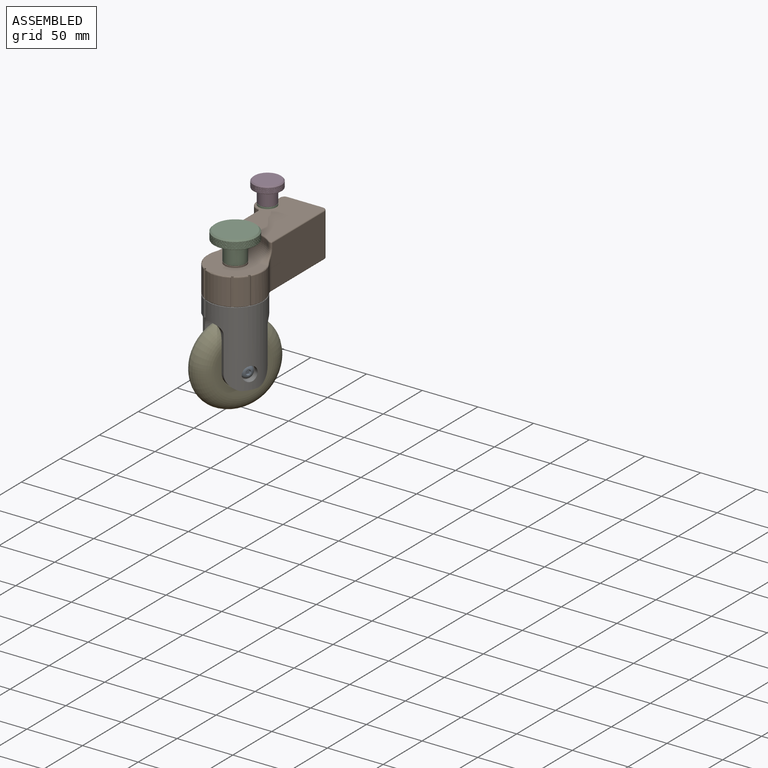
[diagram: assembled view]
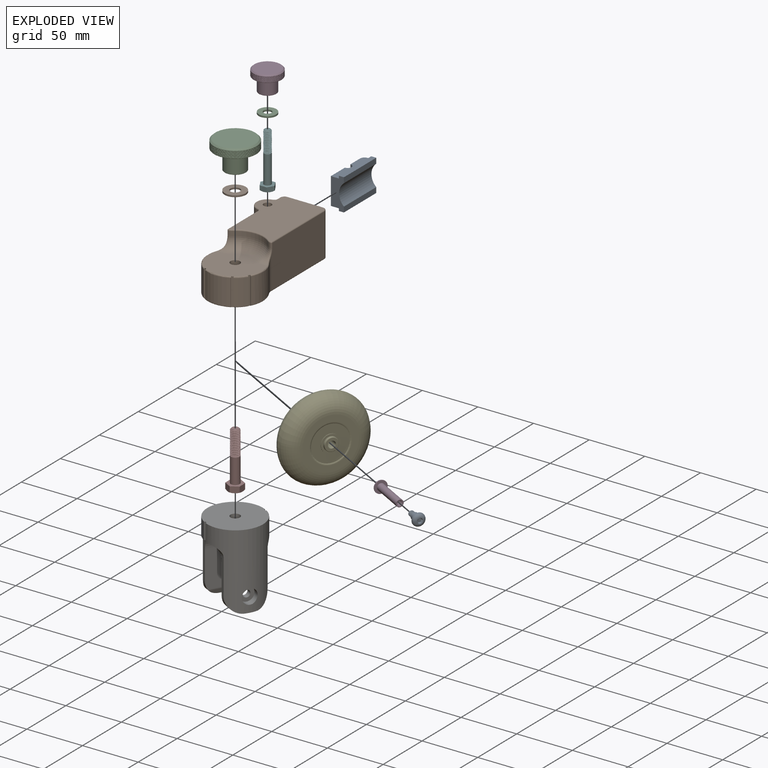
[diagram: exploded view]
GUIDED TOUR — MATED ASSEMBLY (Onshape document 4ea340098eec09b03dd53db8, AutoMate assembly 4ea340098eec09b03dd53db8_989ae54d2c0a97f3ca65fc75_ad3294c9f3adab00267634f9_default)

This assembly has 12 components, labeled P0..P11 below (a component is one placed occurrence of a part; the same part can appear more than once), held together by 11 mates. A mate is a constraint between two components; its type names the relative motion it leaves free:
  FASTENED — locks the two components together rigidly (no relative motion),
  REVOLUTE — leaves rotation about the listed axis free (a hinge),
  SLIDER — leaves translation along the listed axis free.
Axis/direction vectors are unit vectors and 'through' points are millimeter coordinates, both in the assembly's world frame.

MATES
  1. REVOLUTE "Revolute 1": P6 <-> P1, axis (0.000, 0.000, 1.000) through (0.29, -33.04, 0.00) mm
  2. FASTENED "Fastened 7": P2 <-> P9, direction (0.000, 0.000, -1.000) through (0.29, -33.04, 26.45) mm
  3. FASTENED "Fastened 5": P9 <-> P1, direction (0.000, 0.000, -1.000) through (0.29, -33.04, 25.00) mm
  4. FASTENED "Fastened 6": P10 <-> P1, direction (0.000, 0.000, -1.000) through (-19.71, 36.96, 40.00) mm
  5. REVOLUTE "Revolute 2": P4 <-> P6, axis (-0.875, 0.484, 0.000) through (-11.96, -26.26, -55.00) mm
  6. SLIDER "Slider 1": P0 <-> P1, axis (0.000, 1.000, 0.000) through (0.29, 56.96, 20.00) mm
  7. FASTENED "Fastened 2": P8 <-> P6, direction (-0.875, 0.484, 0.000) through (16.92, -42.23, -55.00) mm
  8. FASTENED "Fastened 3": P7 <-> P6, direction (0.000, 0.000, 1.000) through (0.29, -33.04, -10.00) mm
  9. FASTENED "Fastened 1": P3 <-> P6, direction (0.875, -0.484, 0.000) through (-16.34, -23.84, -55.00) mm
  10. FASTENED "Fastened 4": P5 <-> P1, direction (0.000, 0.000, 1.000) through (-19.71, 36.96, 3.50) mm
  11. FASTENED "Fastened 8": P11 <-> P10, direction (0.000, 0.000, -1.000) through (-19.71, 36.96, 41.45) mm

ASSEMBLY ORDER
  1. P1 — the base component [order heuristic]
  2. P5 — core [order heuristic]
  3. P6 — core [order heuristic]
  4. P7 — core [order heuristic]
  5. P10 — core [order heuristic]
  6. P9 — core [order heuristic]
  7. P3 — core [order heuristic]
  8. P4 — core [order heuristic]
  9. P2 — core [order heuristic]
  10. P8 — core [order heuristic]
  11. P11 — core [order heuristic]
  12. P0 [order verified]
Order-tag legend:
  [order verified] — this step's position reverses a verified removal order: the component was checked to insert without passing through the ones already placed.
  [order heuristic] — the first 11 components form the assembly's core: parts whose collision-free extraction could not be verified, listed in mate-graph order.

Of the 12 components, 2 carry the full construction recipe — the FeatureScript program that regenerates the part's solid from scratch; the rest are supplied as boundary geometry only.
Each toured component is shown spotlighted twice — in the assembled view, then in the exploded view, where a leader line traces a displaced component back to its assembled socket (saturated green if recipe-attached, orange if geometry-only; every other component desaturated gray) — followed by its recipe or geometry summary and the mates that hold it.
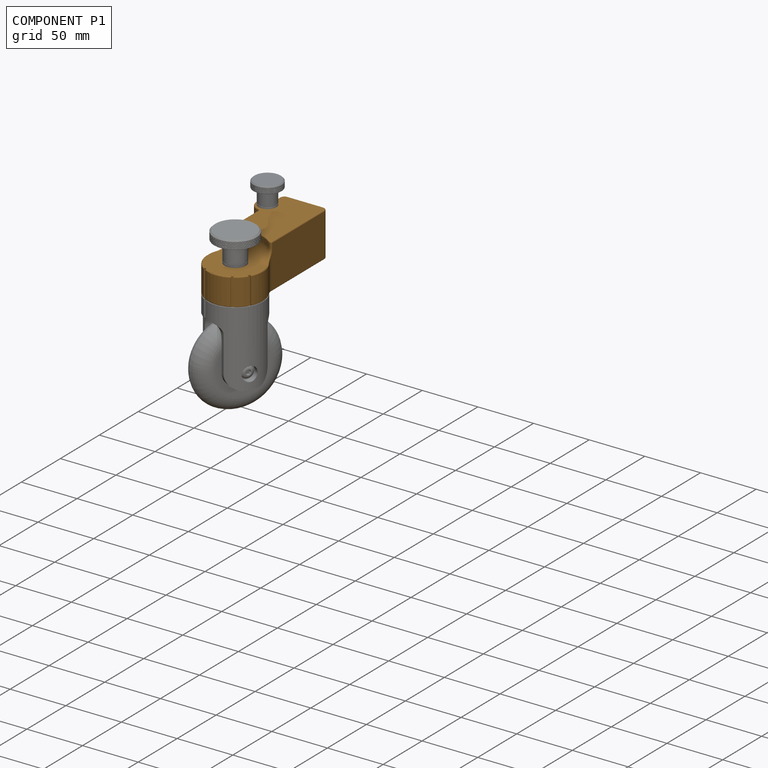
[diagram: component P1 — assembled]
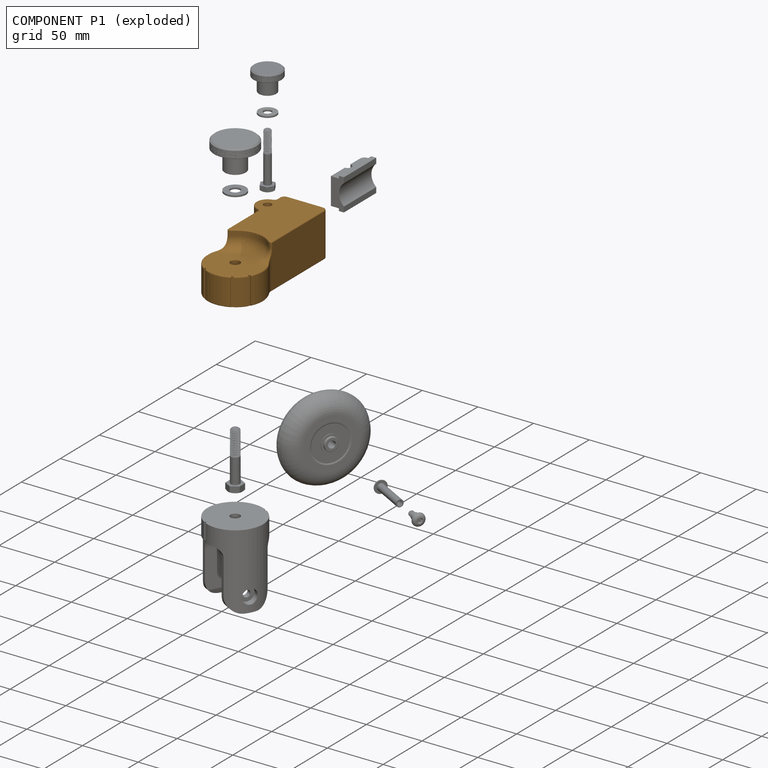
[diagram: component P1 — exploded]
COMPONENT P1 — geometry summary (no construction recipe available for this part):
  bounding box: 117.4 x 57.9 x 42.1 mm
  B-rep topology: 1 solid, 129 faces, 658 edges
  volume: 106815 mm^3 (37% of its bounding box)
Held by: REVOLUTE mate "Revolute 1" to P6; FASTENED mate "Fastened 5" to P9; FASTENED mate "Fastened 6" to P10; SLIDER mate "Slider 1" to P0; FASTENED mate "Fastened 4" to P5.
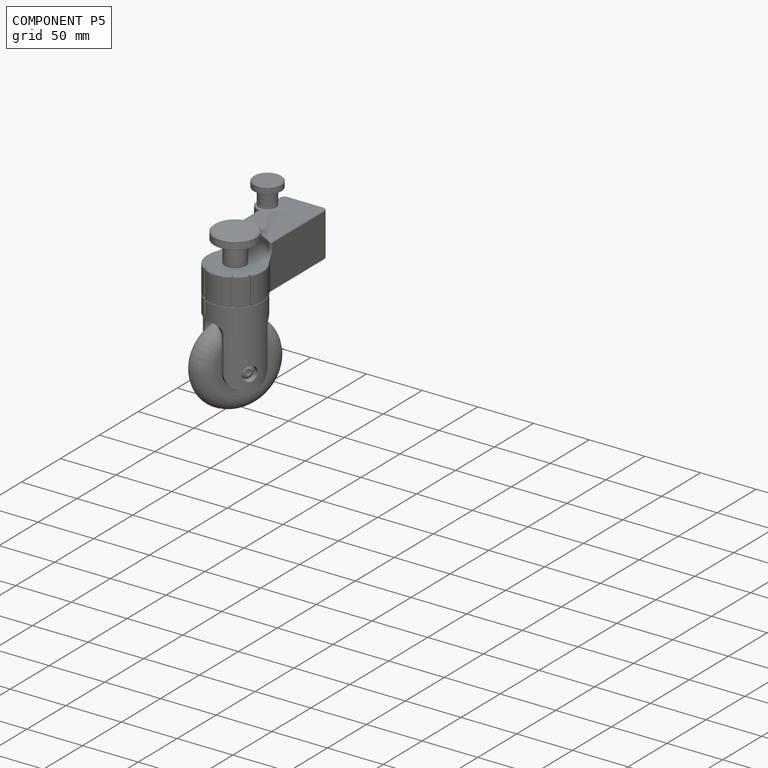
[diagram: component P5 — assembled]
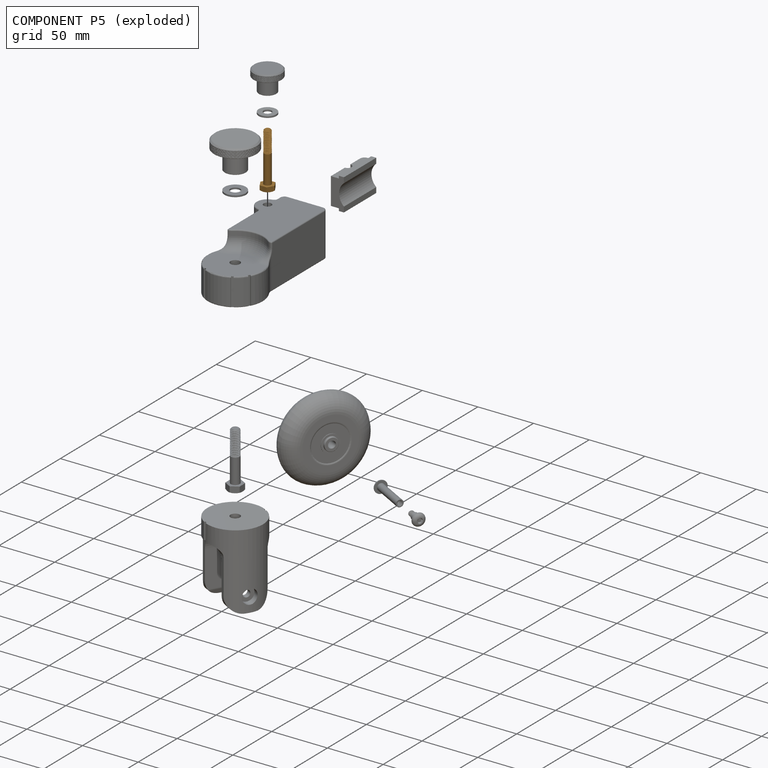
[diagram: component P5 — exploded]
COMPONENT P5 — geometry summary (no construction recipe available for this part):
  bounding box: 49.3 x 12.8 x 12.8 mm
  B-rep topology: 1 solid, 51 faces, 258 edges
  volume: 1731 mm^3 (21% of its bounding box)
  symmetry: 6-fold rotationally symmetric about the x axis
Held by: FASTENED mate "Fastened 4" to P1.
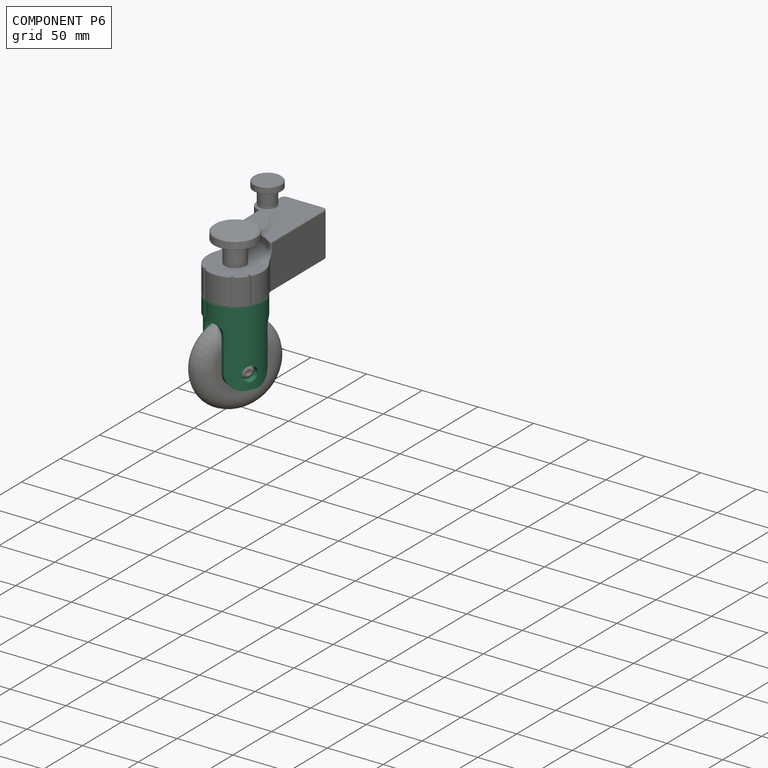
[diagram: component P6 — assembled]
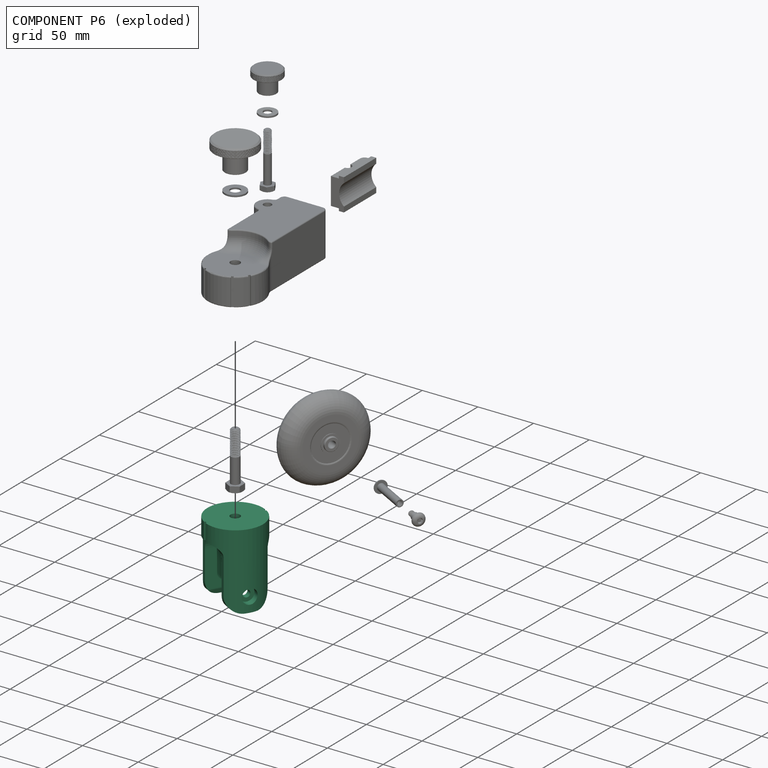
[diagram: component P6 — exploded]
COMPONENT P6 — recipe-attached (CADFS 00204495, mesh-verified: the recipe's output STEP matches this component's geometry to below the mesh-comparison resolution (tessellation chordal tolerance ~0.147 mm)).
Held by: REVOLUTE mate "Revolute 1" to P1; REVOLUTE mate "Revolute 2" to P4; FASTENED mate "Fastened 2" to P8; FASTENED mate "Fastened 3" to P7; FASTENED mate "Fastened 1" to P3.
Construction recipe (FeatureScript — the CAD program that rebuilds this solid; sketch coordinates are in the units given by the * unit suffixes, e.g. mm):

FeatureScript 1511;
import(path : "onshape/std/geometry.fs", version : "1511.0");
import(path : "onshape/std/common.fs", version : "1511.0");
const mm = millimeter;
const VERTEX = EntityType.VERTEX;
const EDGE = EntityType.EDGE;
const FACE = EntityType.FACE;
const BODY = EntityType.BODY;
function v(x, y){return vector(x, y);}
function OD(order){return orderDisambiguation(order);}
function OSD(set){return originalSetDisambiguation(set);}
function TD(topology){return topologyDisambiguation(topology);}
function TDD(query){return trueDependencyDisambiguation(query);}
function sQuery(a, b, c) {return sketchEntityQuery(a, b, c);}

annotation { "Feature Type Name" : "Feature", "Feature Type Description" : "" }
export const myFeature = defineFeature(function(context is Context, id is Id, definition is map)
    precondition{}
    {
        {
            var Q0;
            Q0=qCreatedBy(makeId("Top.planeOp"),FACE);
            var sketch = newSketch(context, id + "F0", { "sketchPlane" : qUnion([Q0])});
            skCircle(sketch, "E0", {"center": v(0, 0) * mm, "radius": 25 * mm});
            skSolve(sketch);
        }
        {
            var Q0;
            Q0 = qSketchRegion(id + "F0", true);
            extrude(context, id + "F1", {"entities" : qUnion([Q0]), "oppositeDirection" : true, "depth" : 68 * mm});
        }
        {
            var Q0;
            Q0=qCreatedBy(makeId("Right.planeOp"),FACE);
            var sketch = newSketch(context, id + "F2", { "sketchPlane" : qUnion([Q0])});
            skCircle(sketch, "E1", {"center": v(0, -55) * mm, "radius": 40 * mm, "construction": true});
            skLineSegment(sketch, "E2", {"start": v(-28, -15) * mm, "end": v(-25, -15) * mm});
            skLineSegment(sketch, "E3", {"start": v(-18, -22.94) * mm, "end": v(-18, -55) * mm});
            skLineSegment(sketch, "E4", {"start": v(-28, -15) * mm, "end": v(-28, -73) * mm});
            skLineSegment(sketch, "E5", {"start": v(-28, -73) * mm, "end": v(0, -73) * mm});
            skLineSegment(sketch, "E6", {"start": v(0, -68) * mm, "end": v(-5, -68) * mm});
            skArc(sketch, "E7", {"start": v(-18, -55) * mm, "mid": v(-14.2, -64.2) * mm, "end": v(-5, -68) * mm});
            skLineSegment(sketch, "E8", {"start": v(0, 0) * mm, "end": v(0, -95) * mm, "construction": true});
            skArc(sketch, "E9", {"start": v(-18, -22.94) * mm, "mid": v(-20, -17.65) * mm, "end": v(-25, -15) * mm});
            skLineSegment(sketch, "E10.MirrorCS", {"start": v(28, -15) * mm, "end": v(25, -15) * mm});
            skArc(sketch, "E11.MirrorCS", {"start": v(18, -22.94) * mm, "mid": v(20, -17.65) * mm, "end": v(25, -15) * mm});
            skArc(sketch, "E12.MirrorCS", {"start": v(18, -55) * mm, "mid": v(14.2, -64.2) * mm, "end": v(5, -68) * mm});
            skLineSegment(sketch, "E13.MirrorCS", {"start": v(0, -68) * mm, "end": v(5, -68) * mm});
            skLineSegment(sketch, "E14.MirrorCS", {"start": v(18, -22.94) * mm, "end": v(18, -55) * mm});
            skLineSegment(sketch, "E15.MirrorCS", {"start": v(28, -73) * mm, "end": v(0, -73) * mm});
            skLineSegment(sketch, "E16.MirrorCS", {"start": v(28, -15) * mm, "end": v(28, -73) * mm});
            skSolve(sketch);
        }
        {
            var Q0;
            Q0 = qSketchRegion(id + "F2", true);
            extrude(context, id + "F3", {"entities" : qUnion([Q0]), "operationType" : NewBodyOperationType.REMOVE, "endBound" : BoundingType.THROUGH_ALL, "oppositeDirection" : true, "depth" : 25 * mm, "hasSecondDirection" : true, "secondDirectionBound" : SecondDirectionBoundingType.THROUGH_ALL, "secondDirectionOppositeDirection" : false, "secondDirectionDepth" : 25 * mm});
        }
        {
            var Q0;
            Q0=qCreatedBy(makeId("Front.planeOp"),FACE);
            var sketch = newSketch(context, id + "F4", { "sketchPlane" : qUnion([Q0])});
            skArc(sketch, "E17", {"start": v(14, -29) * mm, "mid": v(0, -15) * mm, "end": v(-14, -29) * mm});
            skLineSegment(sketch, "E18", {"start": v(-14, -29) * mm, "end": v(-14, -62.33) * mm});
            skLineSegment(sketch, "E19", {"start": v(14, -29) * mm, "end": v(14, -62.33) * mm});
            skLineSegment(sketch, "E20", {"start": v(16.33, -68) * mm, "end": v(-16.33, -68) * mm});
            skLineSegment(sketch, "E21", {"start": v(-14.28, -63.6) * mm, "end": v(-16.33, -68) * mm});
            skLineSegment(sketch, "E22", {"start": v(14.28, -63.6) * mm, "end": v(16.33, -68) * mm});
            skLineSegment(sketch, "E23", {"start": v(-14, -63) * mm, "end": v(14, -63) * mm, "construction": true});
            skPoint(sketch, "E24.visualSharp", {"position": v(-14, -63) * mm});
            skArc(sketch, "E24.filletArc", {"start": v(-14.28, -63.6) * mm, "mid": v(-14.07, -62.98) * mm, "end": v(-14, -62.33) * mm});
            skPoint(sketch, "E25.visualSharp", {"position": v(14, -63) * mm});
            skArc(sketch, "E25.filletArc", {"start": v(14, -62.33) * mm, "mid": v(14.07, -62.98) * mm, "end": v(14.28, -63.6) * mm});
            skSolve(sketch);
        }
        {
            var Q0;
            Q0 = qSketchRegion(id + "F4", true);
            extrude(context, id + "F5", {"entities" : qUnion([Q0]), "operationType" : NewBodyOperationType.REMOVE, "endBound" : BoundingType.THROUGH_ALL, "oppositeDirection" : true, "depth" : 25 * mm, "hasSecondDirection" : true, "secondDirectionBound" : SecondDirectionBoundingType.THROUGH_ALL, "secondDirectionOppositeDirection" : false, "secondDirectionDepth" : 25 * mm});
        }
        {
            var Q0;
            Q0=qCreatedBy(makeId("Front.planeOp"),FACE);
            var sketch = newSketch(context, id + "F6", { "sketchPlane" : qUnion([Q0])});
            skLineSegment(sketch, "E26", {"start": v(-30.91, -55) * mm, "end": v(31.05, -55) * mm, "construction": true});
            skLineSegment(sketch, "E27", {"start": v(-26, -48.5) * mm, "end": v(-19, -48.5) * mm});
            skLineSegment(sketch, "E28", {"start": v(-19, -48.5) * mm, "end": v(-19, -51.88) * mm});
            skLineSegment(sketch, "E29", {"start": v(-19, -51.88) * mm, "end": v(0, -51.88) * mm});
            skLineSegment(sketch, "E30", {"start": v(-26, -48.5) * mm, "end": v(-26, -55) * mm});
            skLineSegment(sketch, "E31", {"start": v(-26, -55) * mm, "end": v(0, -55) * mm});
            skLineSegment(sketch, "E32.MirrorCS", {"start": v(26, -48.5) * mm, "end": v(19, -48.5) * mm});
            skLineSegment(sketch, "E33.MirrorCS", {"start": v(19, -48.5) * mm, "end": v(19, -51.88) * mm});
            skLineSegment(sketch, "E34.MirrorCS", {"start": v(19, -51.88) * mm, "end": v(0, -51.88) * mm});
            skLineSegment(sketch, "E35.MirrorCS", {"start": v(26, -48.5) * mm, "end": v(26, -55) * mm});
            skLineSegment(sketch, "E36.MirrorCS", {"start": v(26, -55) * mm, "end": v(0, -55) * mm});
            skSolve(sketch);
        }
        {
            var Q0;
            Q0 = qSketchRegion(id + "F6", true);
            var Q1;
            Q1=sQuery(id+"F6.wireOp",EDGE,"E26");
            revolve(context, id + "F7", {"operationType" : NewBodyOperationType.REMOVE, "entities" : qUnion([Q0]), "axis" : qUnion([Q1]), "revolveType" : RevolveType.FULL, "oppositeDirection" : true});
        }
        {
            var Q0;
            Q0=makeQuery(id+"F1.opExtrude","CAP_FACE",FACE,{"disambiguationData":[OSD([sQuery(id+"F0.wireOp",EDGE,"E0")])],"isStart":true});
            var sketch = newSketch(context, id + "F8", { "sketchPlane" : qUnion([Q0])});
            skCircle(sketch, "E37", {"center": v(0, 0) * mm, "radius": 4.25 * mm});
            skSolve(sketch);
        }
        {
            var Q0;
            Q0 = qSketchRegion(id + "F8", true);
            extrude(context, id + "F9", {"entities" : qUnion([Q0]), "operationType" : NewBodyOperationType.REMOVE, "oppositeDirection" : true, "depth" : 25 * mm});
        }
        {
            var Q0;
            Q0=qCreatedBy(makeId("Top.planeOp"),FACE);
            cPlane(context, id + "F10", {"entities" : qUnion([Q0]), "cplaneType" : CPlaneType.OFFSET, "offset" : 10 * mm, "oppositeDirection" : true, "width" : 150 * mm, "height" : 150 * mm});
        }
        {
            var Q0;
            Q0=qCreatedBy(id+"F10.planeOp",FACE);
            var sketch = newSketch(context, id + "F11", { "sketchPlane" : qUnion([Q0])});
            skCircle(sketch, "E38.cCircle", {"center": v(0, 0) * mm, "radius": 6.3 * mm, "construction": true});
            skLineSegment(sketch, "E38.0", {"start": v(7.27, 0) * mm, "end": v(3.64, -6.3) * mm});
            skLineSegment(sketch, "E38.1", {"start": v(3.64, -6.3) * mm, "end": v(-3.64, -6.3) * mm});
            skLineSegment(sketch, "E38.2", {"start": v(-3.64, -6.3) * mm, "end": v(-7.27, 0) * mm});
            skLineSegment(sketch, "E38.3", {"start": v(-7.27, 0) * mm, "end": v(-3.64, 6.3) * mm});
            skLineSegment(sketch, "E38.4", {"start": v(-3.64, 6.3) * mm, "end": v(3.64, 6.3) * mm});
            skLineSegment(sketch, "E38.5", {"start": v(3.64, 6.3) * mm, "end": v(7.27, 0) * mm});
            skPoint(sketch, "E38.0.midPoint", {"position": v(5.46, -3.15) * mm});
            skSolve(sketch);
        }
        {
            var Q0;
            Q0 = qSketchRegion(id + "F11", true);
            extrude(context, id + "F12", {"entities" : qUnion([Q0]), "operationType" : NewBodyOperationType.REMOVE, "oppositeDirection" : true, "depth" : 10 * mm});
        }
        {
            var Q0;
            Q0=makeQuery(id+"F1.opExtrude","CAP_FACE",FACE,{"disambiguationData":[OSD([sQuery(id+"F0.wireOp",EDGE,"E0")])],"isStart":true});
            var sketch = newSketch(context, id + "F13", { "sketchPlane" : qUnion([Q0])});
            skLineSegment(sketch, "E39.bottom", {"start": v(-1, 24) * mm, "end": v(1, 24) * mm});
            skLineSegment(sketch, "E39.top", {"start": v(-1, 26) * mm, "end": v(1, 26) * mm});
            skLineSegment(sketch, "E39.left", {"start": v(-1, 24) * mm, "end": v(-1, 26) * mm});
            skLineSegment(sketch, "E39.right", {"start": v(1, 24) * mm, "end": v(1, 26) * mm});
            skLineSegment(sketch, "E40.bottom", {"start": v(-1, -26) * mm, "end": v(1, -26) * mm});
            skLineSegment(sketch, "E40.top", {"start": v(-1, -24) * mm, "end": v(1, -24) * mm});
            skLineSegment(sketch, "E40.left", {"start": v(-1, -26) * mm, "end": v(-1, -24) * mm});
            skLineSegment(sketch, "E40.right", {"start": v(1, -26) * mm, "end": v(1, -24) * mm});
            skLineSegment(sketch, "E41", {"start": v(0, 18.47) * mm, "end": v(0, -17.11) * mm, "construction": true});
            skPoint(sketch, "E42", {"position": v(0, 24) * mm});
            skPoint(sketch, "E43", {"position": v(0, -24) * mm});
            skSolve(sketch);
        }
        {
            var Q0;
            Q0 = qSketchRegion(id + "F13", true);
            extrude(context, id + "F14", {"entities" : qUnion([Q0]), "operationType" : NewBodyOperationType.REMOVE, "oppositeDirection" : true, "depth" : 25 * mm});
        }
    });
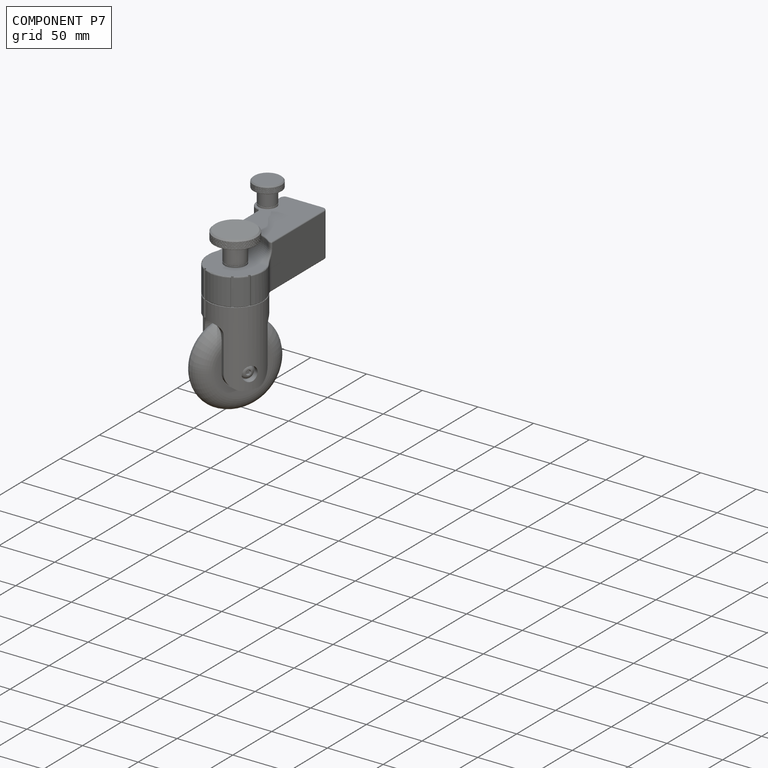
[diagram: component P7 — assembled]
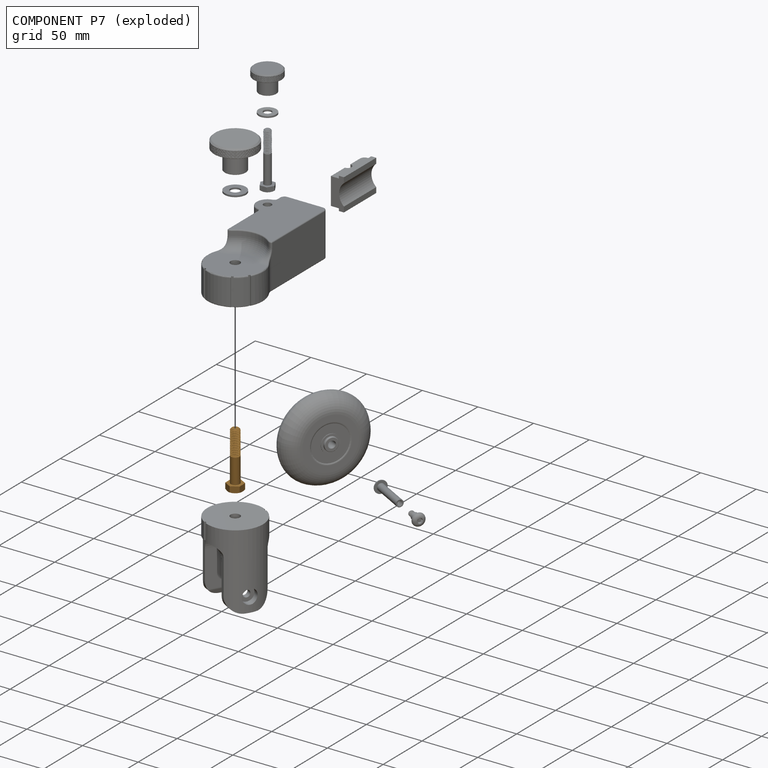
[diagram: component P7 — exploded]
COMPONENT P7 — geometry summary (no construction recipe available for this part):
  bounding box: 50.5 x 14.7 x 14.7 mm
  B-rep topology: 1 solid, 51 faces, 256 edges
  volume: 2731 mm^3 (25% of its bounding box)
  symmetry: 6-fold rotationally symmetric about the x axis
Held by: FASTENED mate "Fastened 3" to P6.
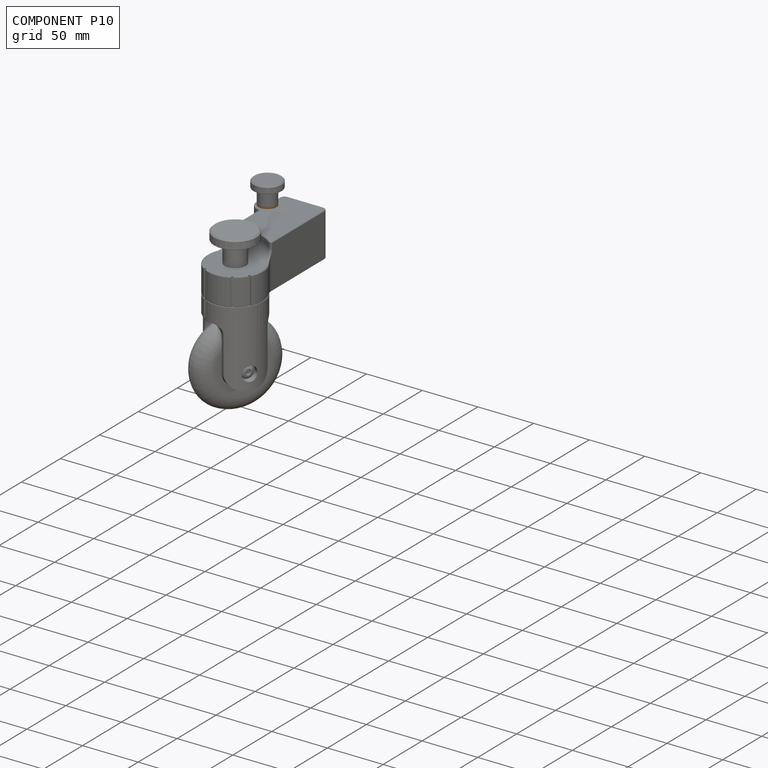
[diagram: component P10 — assembled]
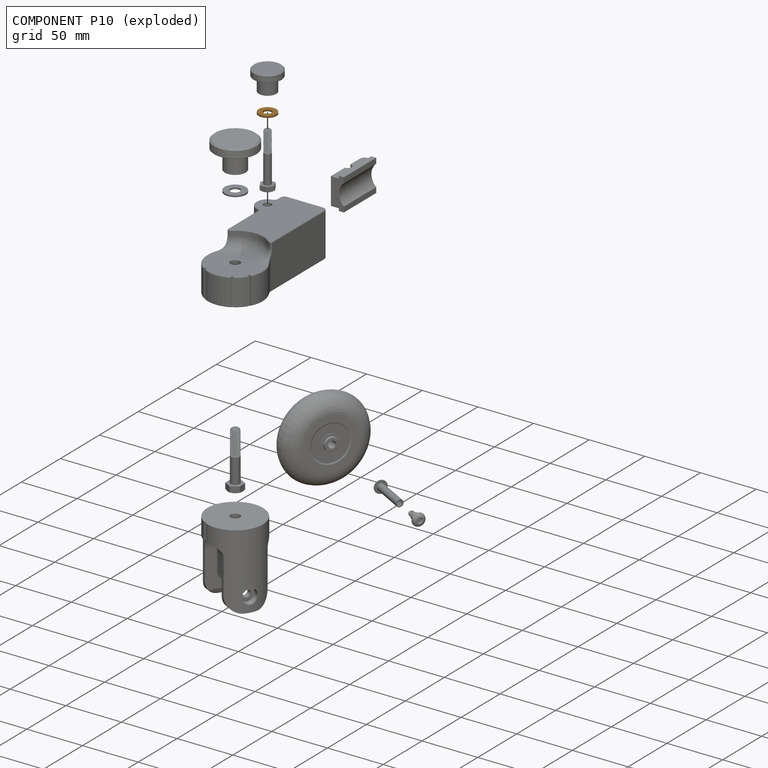
[diagram: component P10 — exploded]
COMPONENT P10 — geometry summary (no construction recipe available for this part):
  bounding box: 15.9 x 15.9 x 1.4 mm
  B-rep topology: 1 solid, 4 faces, 12 edges
  volume: 229 mm^3 (63% of its bounding box)
  symmetry: 2-fold rotationally symmetric about the x axis; revolution-symmetric about the y axis through its bounding-box center; 2-fold rotationally symmetric about the z axis; mirror-symmetric across its x mid-plane, y mid-plane, z mid-plane
Held by: FASTENED mate "Fastened 6" to P1; FASTENED mate "Fastened 8" to P11.
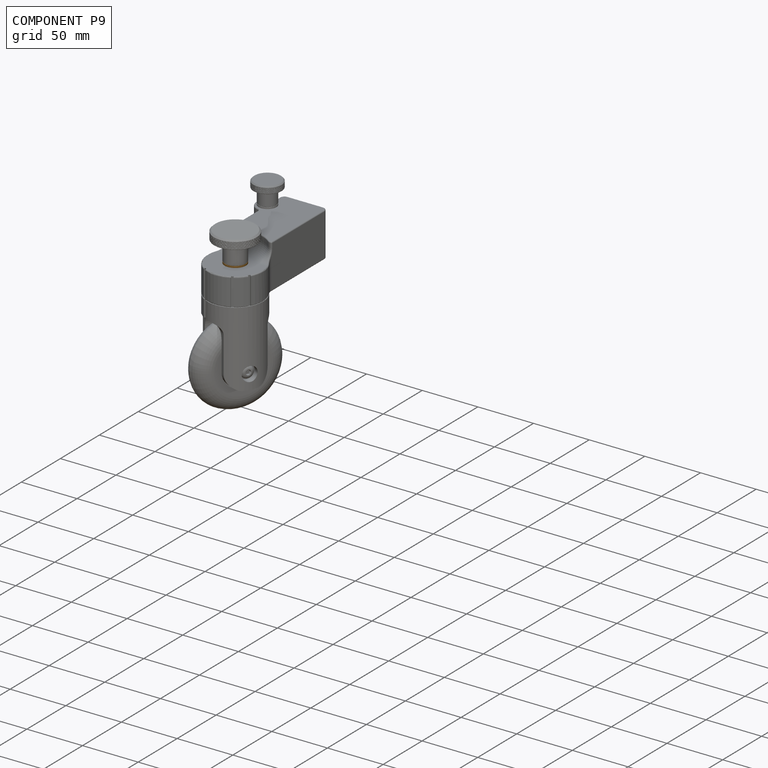
[diagram: component P9 — assembled]
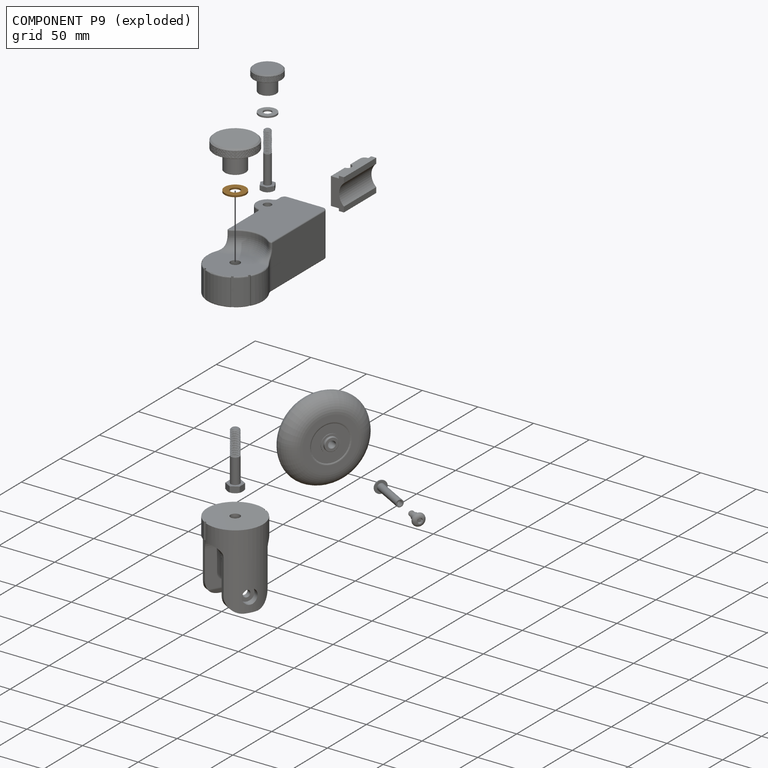
[diagram: component P9 — exploded]
COMPONENT P9 — geometry summary (no construction recipe available for this part):
  bounding box: 19.1 x 19.1 x 1.4 mm
  B-rep topology: 1 solid, 4 faces, 12 edges
  volume: 326 mm^3 (62% of its bounding box)
  symmetry: 2-fold rotationally symmetric about the x axis; revolution-symmetric about the y axis through its bounding-box center; 2-fold rotationally symmetric about the z axis; mirror-symmetric across its x mid-plane, y mid-plane, z mid-plane
Held by: FASTENED mate "Fastened 7" to P2; FASTENED mate "Fastened 5" to P1.
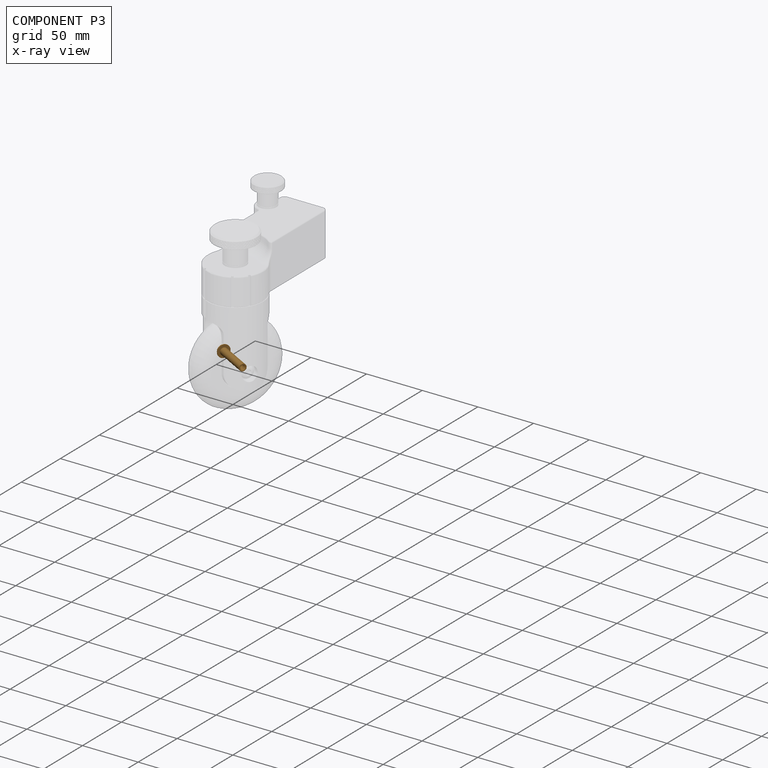
[diagram: component P3 — x-ray view]
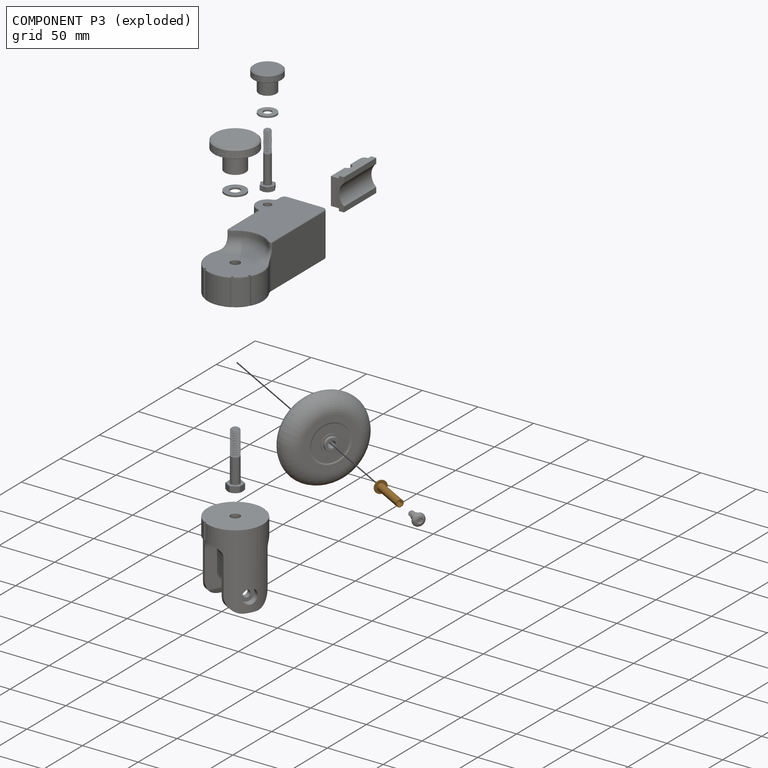
[diagram: component P3 — exploded]
COMPONENT P3 — geometry summary (no construction recipe available for this part):
  bounding box: 35.3 x 11.1 x 11.1 mm
  B-rep topology: 1 solid, 25 faces, 94 edges
  volume: 1085 mm^3 (25% of its bounding box)
  symmetry: revolution-symmetric about the x axis through its bounding-box center
Held by: FASTENED mate "Fastened 1" to P6.
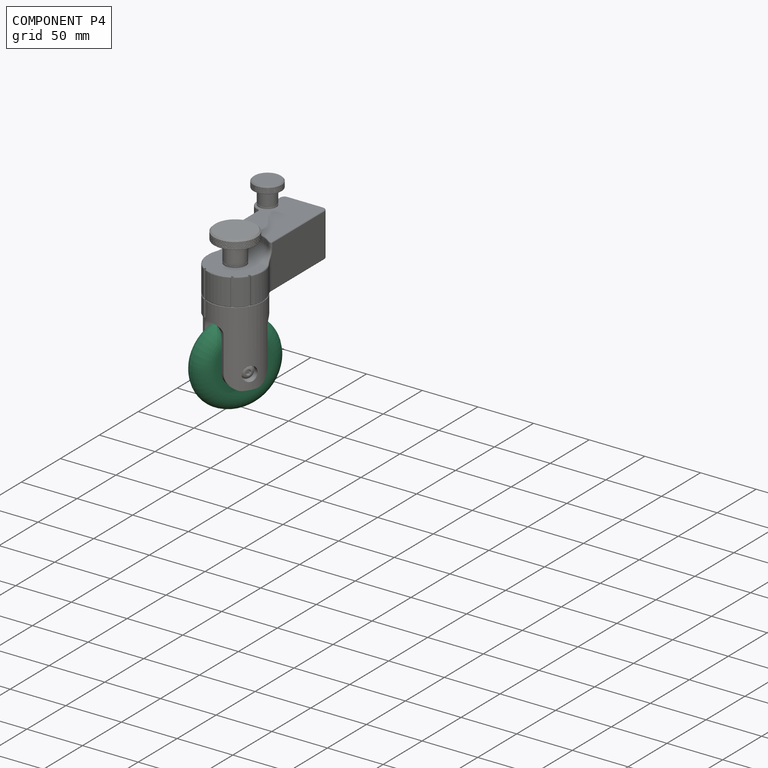
[diagram: component P4 — assembled]
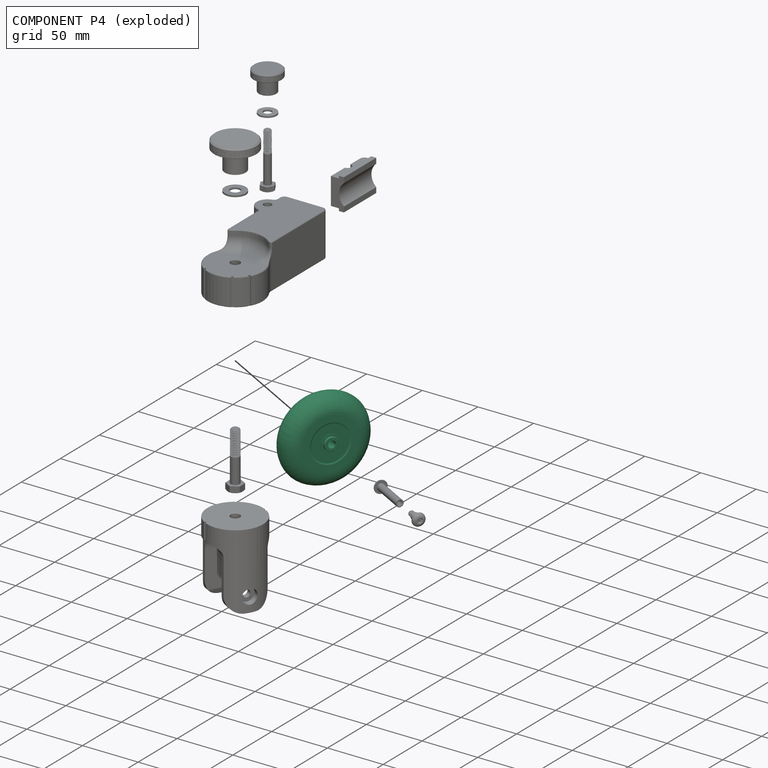
[diagram: component P4 — exploded]
COMPONENT P4 — recipe-attached (CADFS 00242073, mesh-verified: the recipe's output STEP matches this component's geometry to below the mesh-comparison resolution (tessellation chordal tolerance ~0.166 mm)).
Held by: REVOLUTE mate "Revolute 2" to P6.
Construction recipe (FeatureScript — the CAD program that rebuilds this solid; sketch coordinates are in the units given by the * unit suffixes, e.g. mm):

FeatureScript 1511;
import(path : "onshape/std/geometry.fs", version : "1511.0");
import(path : "onshape/std/common.fs", version : "1511.0");
const mm = millimeter;
const VERTEX = EntityType.VERTEX;
const EDGE = EntityType.EDGE;
const FACE = EntityType.FACE;
const BODY = EntityType.BODY;
function v(x, y){return vector(x, y);}
function OD(order){return orderDisambiguation(order);}
function OSD(set){return originalSetDisambiguation(set);}
function TD(topology){return topologyDisambiguation(topology);}
function TDD(query){return trueDependencyDisambiguation(query);}
function sQuery(a, b, c) {return sketchEntityQuery(a, b, c);}

annotation { "Feature Type Name" : "Feature", "Feature Type Description" : "" }
export const myFeature = defineFeature(function(context is Context, id is Id, definition is map)
    precondition{}
    {
        {
            var Q0;
            Q0=qCreatedBy(makeId("Front.planeOp"),FACE);
            var sketch = newSketch(context, id + "F0", { "sketchPlane" : qUnion([Q0])});
            skLineSegment(sketch, "E0", {"start": v(-13.97, 0) * mm, "end": v(13.97, 0) * mm, "construction": true});
            skPoint(sketch, "E1", {"position": v(0, 0) * mm});
            skLineSegment(sketch, "E2", {"start": v(0, 3.18) * mm, "end": v(-14, 3.18) * mm});
            skLineSegment(sketch, "E3", {"start": v(-14, 3.17) * mm, "end": v(-14, 5.5) * mm});
            skLineSegment(sketch, "E4", {"start": v(-13.5, 6) * mm, "end": v(-12, 6) * mm});
            skLineSegment(sketch, "E5", {"start": v(-12, 6) * mm, "end": v(-12, 8) * mm});
            skLineSegment(sketch, "E6", {"start": v(-12, 8) * mm, "end": v(-11.5, 8) * mm});
            skLineSegment(sketch, "E7", {"start": v(-11.5, 8) * mm, "end": v(-11.5, 16) * mm});
            skLineSegment(sketch, "E8", {"start": v(-11.5, 16) * mm, "end": v(-11.73, 16.4) * mm});
            skLineSegment(sketch, "E9", {"start": v(-12, 17.4) * mm, "end": v(-12, 23.3) * mm});
            skArc(sketch, "E10", {"start": v(0, 38) * mm, "mid": v(-8.62, 32.79) * mm, "end": v(-12, 23.3) * mm});
            skPoint(sketch, "E11.visualSharp", {"position": v(-12, 16.87) * mm});
            skArc(sketch, "E11.filletArc", {"start": v(-12, 17.4) * mm, "mid": v(-11.93, 16.88) * mm, "end": v(-11.73, 16.4) * mm});
            skLineSegment(sketch, "E12", {"start": v(0, 38) * mm, "end": v(0, 0) * mm, "construction": true});
            skPoint(sketch, "E13.visualSharp", {"position": v(-14, 6) * mm});
            skArc(sketch, "E13.filletArc", {"start": v(-13.5, 6) * mm, "mid": v(-13.85, 5.85) * mm, "end": v(-14, 5.5) * mm});
            skArc(sketch, "E14.MirrorCS", {"start": v(13.5, 6) * mm, "mid": v(13.85, 5.85) * mm, "end": v(14, 5.5) * mm});
            skLineSegment(sketch, "E15.MirrorCS", {"start": v(13.5, 6) * mm, "end": v(12, 6) * mm});
            skLineSegment(sketch, "E16.MirrorCS", {"start": v(11.5, 16) * mm, "end": v(11.73, 16.4) * mm});
            skArc(sketch, "E17.MirrorCS", {"start": v(12, 17.4) * mm, "mid": v(11.93, 16.88) * mm, "end": v(11.73, 16.4) * mm});
            skLineSegment(sketch, "E18.MirrorCS", {"start": v(14, 3.17) * mm, "end": v(14, 5.5) * mm});
            skLineSegment(sketch, "E19.MirrorCS", {"start": v(12, 6) * mm, "end": v(12, 8) * mm});
            skLineSegment(sketch, "E20.MirrorCS", {"start": v(12, 8) * mm, "end": v(11.5, 8) * mm});
            skPoint(sketch, "E21.MirrorP", {"position": v(12, 16.87) * mm});
            skLineSegment(sketch, "E22.MirrorCS", {"start": v(0, 3.18) * mm, "end": v(14, 3.17) * mm});
            skPoint(sketch, "E23.MirrorP", {"position": v(14, 6) * mm});
            skLineSegment(sketch, "E24.MirrorCS", {"start": v(11.5, 8) * mm, "end": v(11.5, 16) * mm});
            skLineSegment(sketch, "E25.MirrorCS", {"start": v(12, 17.4) * mm, "end": v(12, 23.3) * mm});
            skArc(sketch, "E26.MirrorCS", {"start": v(0, 38) * mm, "mid": v(8.62, 32.79) * mm, "end": v(12, 23.3) * mm});
            skSolve(sketch);
        }
        {
            var Q0;
            Q0=qSketchRegion(id+"F0",true);
            var Q1;
            Q1=sQuery(id+"F0.wireOp",EDGE,"E0");
            revolve(context, id + "F1", {"entities" : qUnion([Q0]), "axis" : qUnion([Q1]), "revolveType" : RevolveType.FULL});
        }
        {
            var Q0;
            Q0=makeQuery(id+"F1.opRevolve","SWEPT_EDGE",EDGE,{"disambiguationData":[OSD([sQuery(id+"F0.wireOp",EDGE,"E10"),sQuery(id+"F0.wireOp",EDGE,"E26.MirrorCS")])]});
            fillet(context, id + "F2", {"entities" : qUnion([Q0]), "radius" : 3 * mm, "tangentPropagation" : true, "allowEdgeOverflow" : false});
        }
    });
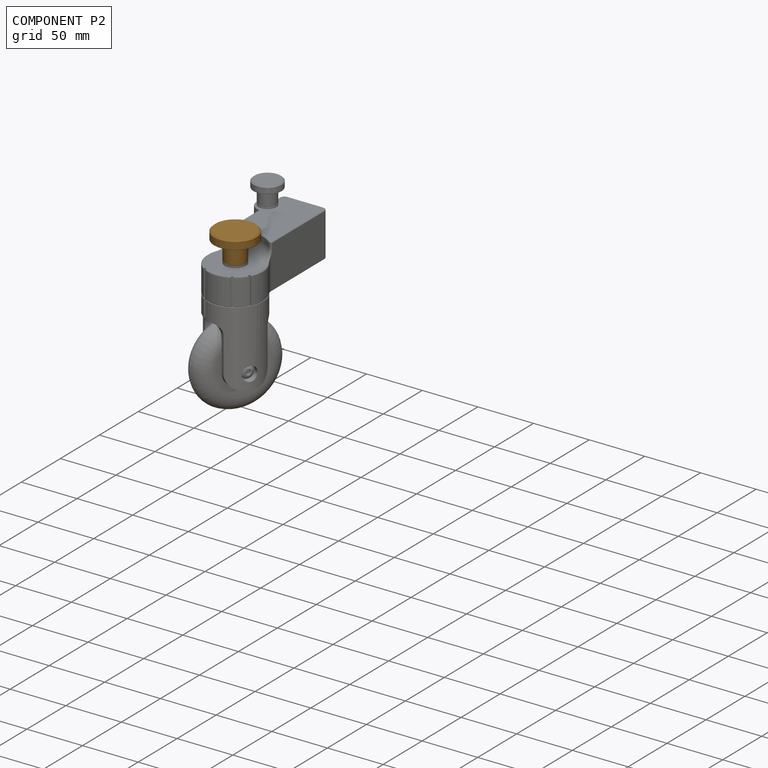
[diagram: component P2 — assembled]
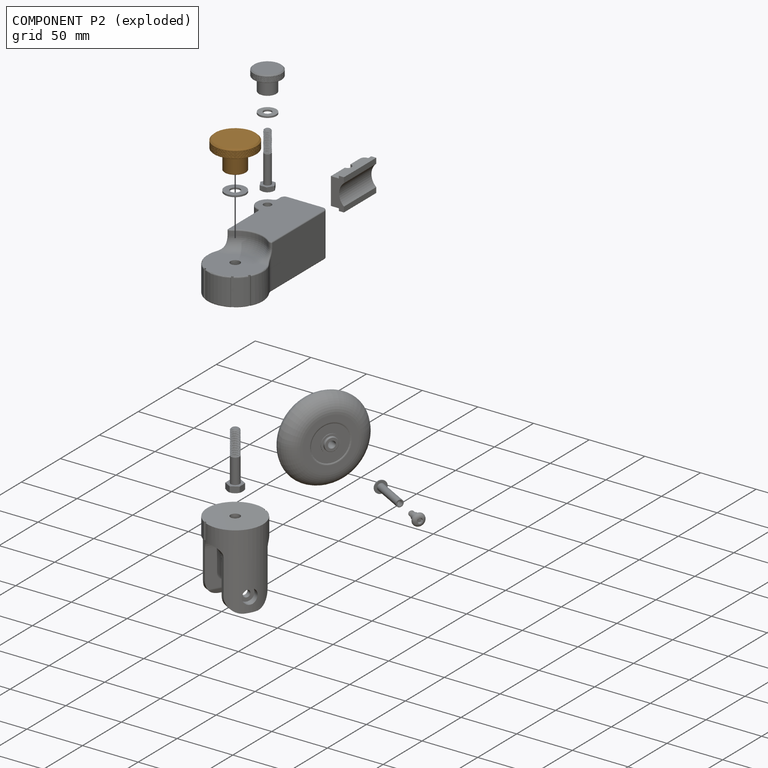
[diagram: component P2 — exploded]
COMPONENT P2 — geometry summary (no construction recipe available for this part):
  bounding box: 41.3 x 41.3 x 25.7 mm
  B-rep topology: 1 solid, 1787 faces, 9326 edges
  volume: 13229 mm^3 (30% of its bounding box)
  symmetry: mirror-symmetric across its x mid-plane
Held by: FASTENED mate "Fastened 7" to P9.
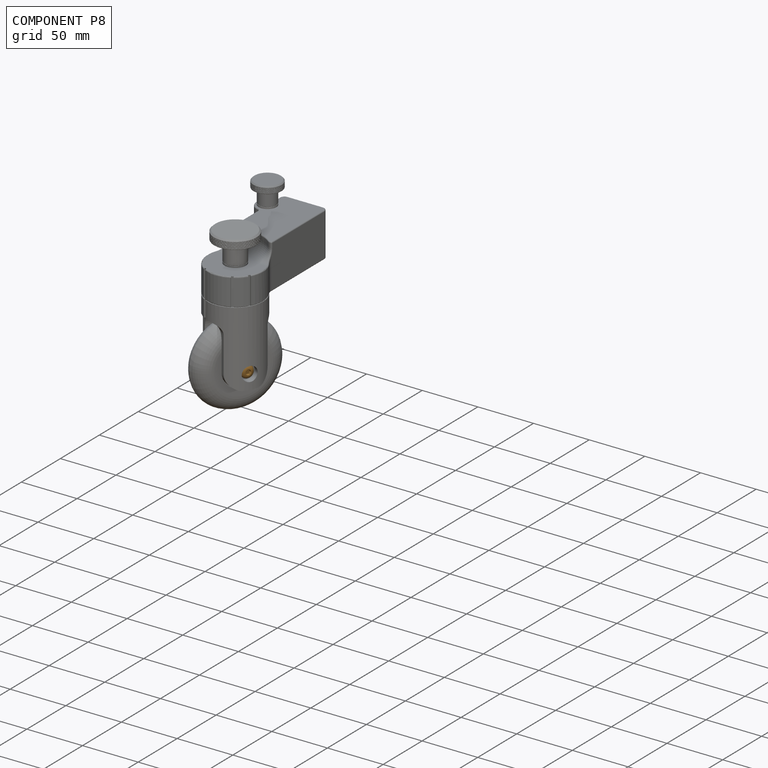
[diagram: component P8 — assembled]
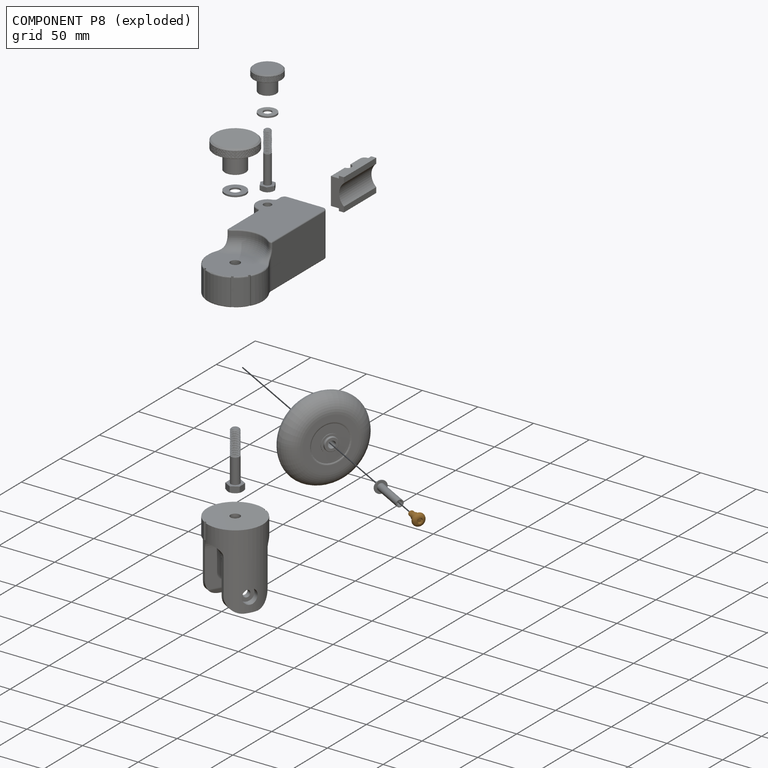
[diagram: component P8 — exploded]
COMPONENT P8 — geometry summary (no construction recipe available for this part):
  bounding box: 16.7 x 11.5 x 11.5 mm
  B-rep topology: 1 solid, 24 faces, 94 edges
  volume: 497 mm^3 (22% of its bounding box)
Held by: FASTENED mate "Fastened 2" to P6.
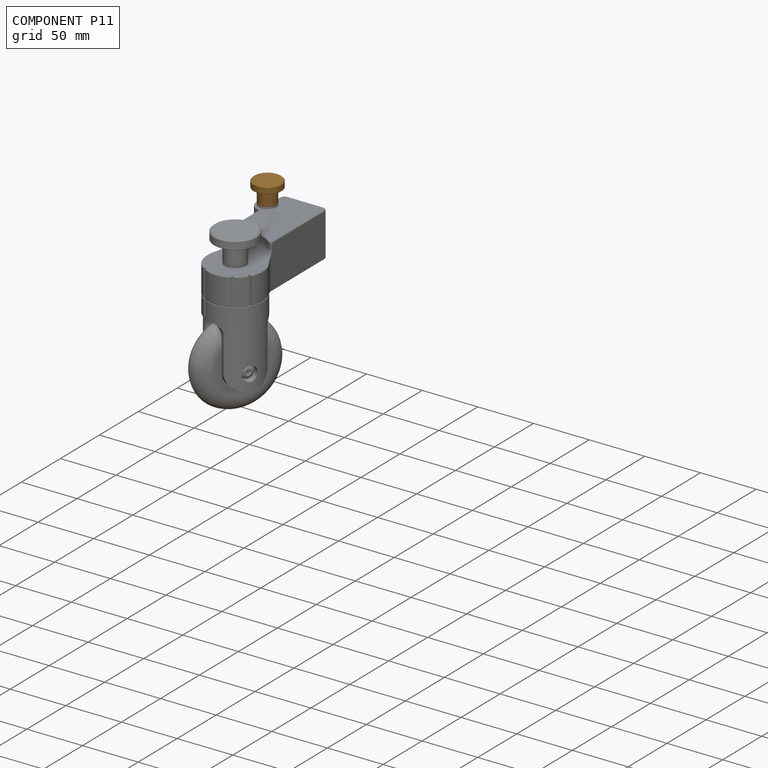
[diagram: component P11 — assembled]
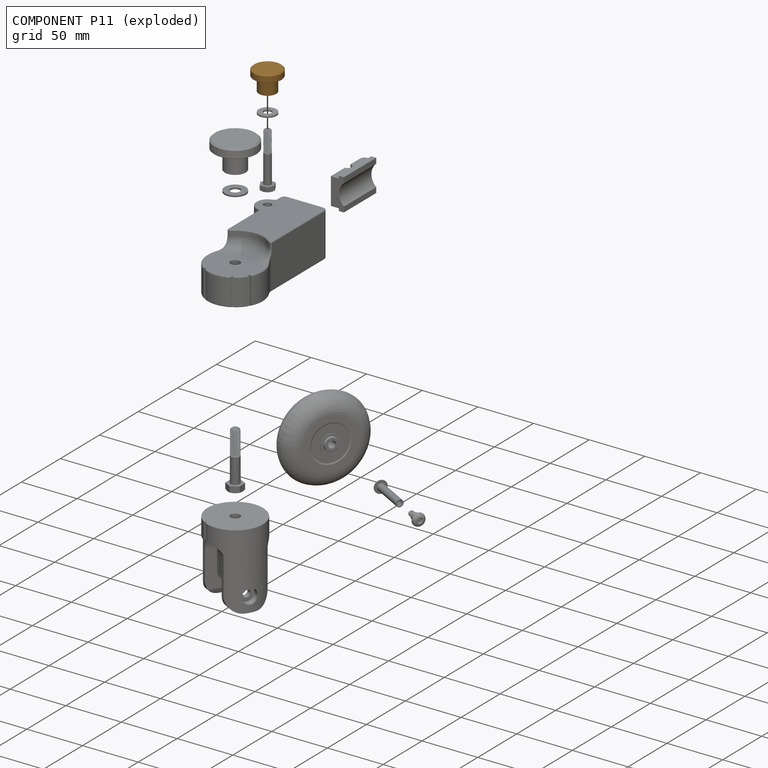
[diagram: component P11 — exploded]
COMPONENT P11 — geometry summary (no construction recipe available for this part):
  bounding box: 27.6 x 27.6 x 19.3 mm
  B-rep topology: 1 solid, 1784 faces, 9306 edges
  volume: 5392 mm^3 (37% of its bounding box)
  symmetry: mirror-symmetric across its x mid-plane
Held by: FASTENED mate "Fastened 8" to P10.
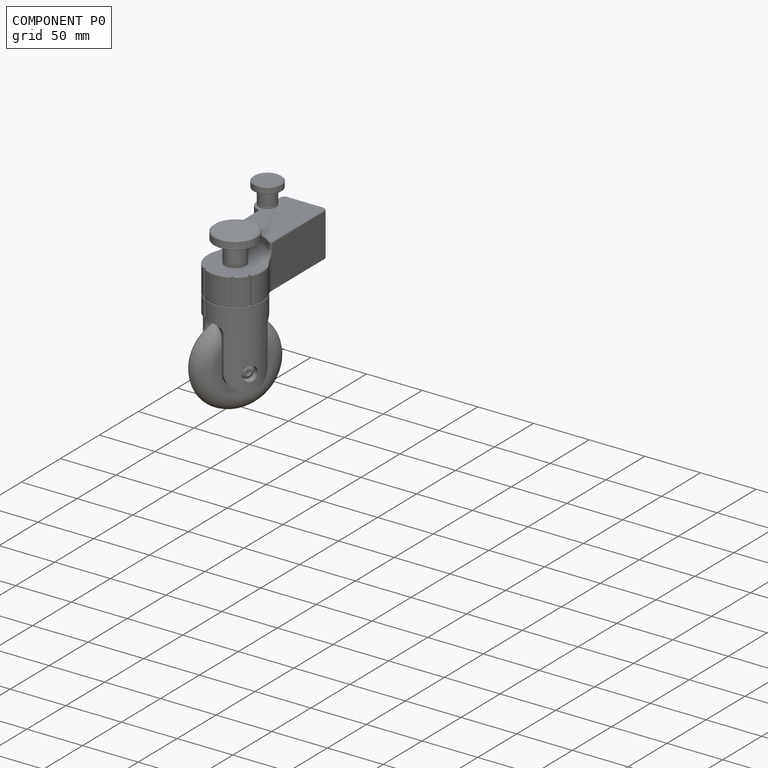
[diagram: component P0 — assembled]
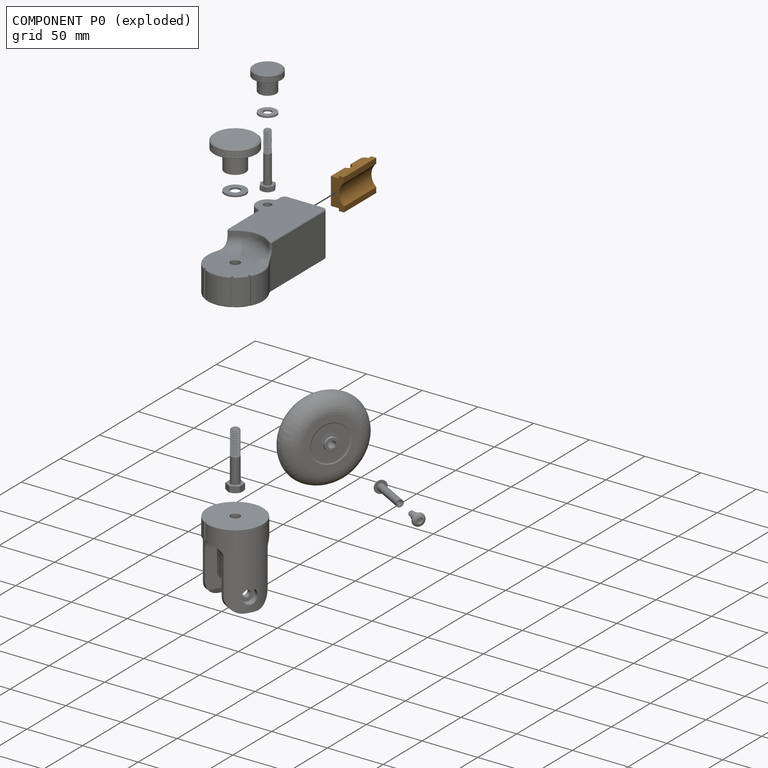
[diagram: component P0 — exploded]
COMPONENT P0 — geometry summary (no construction recipe available for this part):
  bounding box: 41.5 x 28.6 x 11.8 mm
  B-rep topology: 1 solid, 15 faces, 78 edges
  volume: 9688 mm^3 (69% of its bounding box)
  symmetry: mirror-symmetric across its z mid-plane
Held by: SLIDER mate "Slider 1" to P1.
PROVENANCE & LICENSES
Assembly (occurrences, transforms, mates, per-part STEP geometry): AutoMate dataset, Zenodo record 7776208, CC0.
Construction recipes: CADFS (HuggingFace VladPyatov/CADFS, CC-BY-4.0, layered over the ABC dataset), FeatureScript reconstruction programs keyed by ABC model id.
Join: ABC meta listings map ABC model id -> Onshape documentId; within a shared document, parts are matched by geometric signature (bounding-box dims + volume at 0.1% relative tolerance, exact B-rep face/solid counts).
Verification: 2 of this assembly's 12 components carry a recipe attachment, and every attachment is mesh-verified: the CADFS STEP and the AutoMate member STEP were compared as meshes in their shared local frame (symmetric sampled-point-to-mesh distance); worst across the 2 attachments: below the mesh-comparison resolution (tessellation chordal tolerance ~0.166 mm) on a 111 mm part.
Renders: orthographic iso camera (az 35 / el 25); the floor grid conveys scale (grid pitch printed in each image; no ruler). In the exploded view each component is displaced by its stored offset vector: the offsets alone carry the explosion direction (mate normal/axis signs are not orientation cues and do not encode it), and separation distances are assigned per mate-chain, not proportionally to assembly-order depth.
